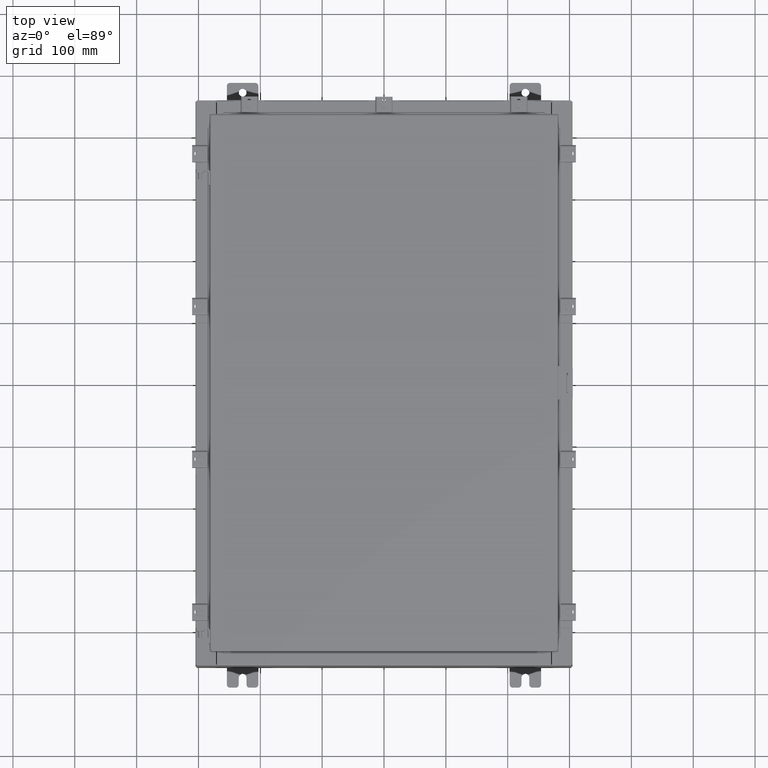
[diagram: clean part render]
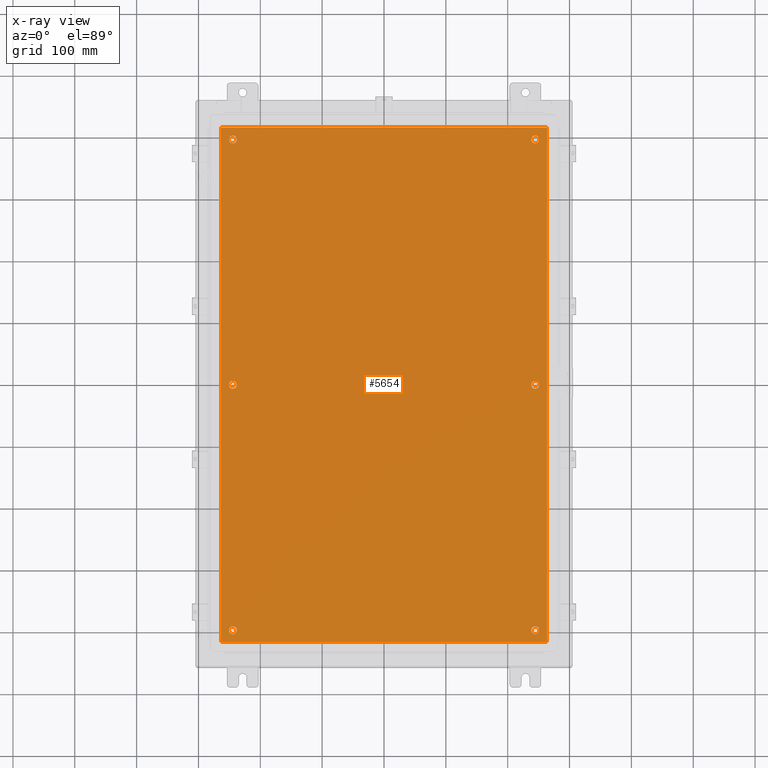
[diagram: x-ray — body ghosted, one internal face saturated and labeled with its STEP entity id]
A machine part, top view, then the same camera in x-ray: the body is ghosted and one INTERNAL B-rep face — a face not visible from any outside direction — is saturated and labeled: STEP entity #5654.
In plain terms, the highlighted planar face has unit normal (0, 0, -1).
Its self-contained STEP definition (entity closure, byte-faithful):
#704 = FACE_BOUND ( 'NONE', #13198, .T. ) ;
#902 = DIRECTION ( 'NONE',  ( -1.000000000000000000, 0.0000000000000000000, 0.0000000000000000000 ) ) ;
#1252 = AXIS2_PLACEMENT_3D ( 'NONE', #15045, #4259, #16879 ) ;
#1322 = CIRCLE ( 'NONE', #1252, 0.2499999999999998100 ) ;
#1327 = AXIS2_PLACEMENT_3D ( 'NONE', #8301, #20927, #10097 ) ;
#1507 = EDGE_CURVE ( 'NONE', #11406, #23224, #2760, .T. ) ;
#1659 = DIRECTION ( 'NONE',  ( -1.000000000000000000, 0.0000000000000000000, 0.0000000000000000000 ) ) ;
#1670 = EDGE_LOOP ( 'NONE', ( #9652, #3026 ) ) ;
#1897 = AXIS2_PLACEMENT_3D ( 'NONE', #18444, #7579, #20238 ) ;
#1991 = ORIENTED_EDGE ( 'NONE', *, *, #12398, .T. ) ;
#2017 = CARTESIAN_POINT ( 'NONE',  ( -9.625000000000007100, -15.62500000000000200, -0.1039999999999999800 ) ) ;
#2419 = VECTOR ( 'NONE', #10706, 39.37007874015748100 ) ;
#2760 = LINE ( 'NONE', #22980, #21298 ) ;
#2875 = AXIS2_PLACEMENT_3D ( 'NONE', #23168, #12344, #1659 ) ;
#2931 = EDGE_CURVE ( 'NONE', #20089, #19381, #4880, .T. ) ;
#3026 = ORIENTED_EDGE ( 'NONE', *, *, #8653, .T. ) ;
#3171 = CARTESIAN_POINT ( 'NONE',  ( -9.625000000000007100, 15.62500000000000200, -0.1039999999999999800 ) ) ;
#3280 = CIRCLE ( 'NONE', #4363, 0.2499999999999998100 ) ;
#3766 = DIRECTION ( 'NONE',  ( -1.000000000000000000, 0.0000000000000000000, 0.0000000000000000000 ) ) ;
#3779 = VECTOR ( 'NONE', #19208, 39.37007874015748100 ) ;
#3788 = LINE ( 'NONE', #5090, #22379 ) ;
#3994 = VERTEX_POINT ( 'NONE', #18817 ) ;
#4201 = ORIENTED_EDGE ( 'NONE', *, *, #16274, .T. ) ;
#4259 = DIRECTION ( 'NONE',  ( -0.0000000000000000000, -0.0000000000000000000, 1.000000000000000000 ) ) ;
#4350 = DIRECTION ( 'NONE',  ( 0.0000000000000000000, 1.000000000000000000, 0.0000000000000000000 ) ) ;
#4363 = AXIS2_PLACEMENT_3D ( 'NONE', #16070, #5232, #17894 ) ;
#4366 = ORIENTED_EDGE ( 'NONE', *, *, #18116, .T. ) ;
#4581 = EDGE_CURVE ( 'NONE', #19381, #11406, #3788, .T. ) ;
#4833 = ORIENTED_EDGE ( 'NONE', *, *, #22831, .F. ) ;
#4842 = FACE_OUTER_BOUND ( 'NONE', #16125, .T. ) ;
#4880 = LINE ( 'NONE', #19134, #3779 ) ;
#4926 = DIRECTION ( 'NONE',  ( -1.000000000000000000, 0.0000000000000000000, 0.0000000000000000000 ) ) ;
#5090 = CARTESIAN_POINT ( 'NONE',  ( 10.38300000000000100, -16.38299999999999600, -0.1040000000000009100 ) ) ;
#5091 = VERTEX_POINT ( 'NONE', #14673 ) ;
#5232 = DIRECTION ( 'NONE',  ( -0.0000000000000000000, -0.0000000000000000000, 1.000000000000000000 ) ) ;
#5654 = ADVANCED_FACE ( 'NONE', ( #10164, #15016, #19247, #14438, #9623, #704, #4842 ), #15385, .T. ) ;
#5820 = CIRCLE ( 'NONE', #21038, 0.2499999999999998100 ) ;
#6141 = CIRCLE ( 'NONE', #1897, 0.2500000000000008900 ) ;
#6300 = VERTEX_POINT ( 'NONE', #17323 ) ;
#6314 = CIRCLE ( 'NONE', #2875, 0.2499999999999998100 ) ;
#6813 = CARTESIAN_POINT ( 'NONE',  ( -9.625000000000005300, 2.628543122537473900E-016, -0.1039999999999999800 ) ) ;
#7065 = VERTEX_POINT ( 'NONE', #12711 ) ;
#7250 = AXIS2_PLACEMENT_3D ( 'NONE', #3171, #15737, #4926 ) ;
#7382 = CARTESIAN_POINT ( 'NONE',  ( -9.625000000000007100, 15.62500000000000200, -0.1039999999999999800 ) ) ;
#7571 = ORIENTED_EDGE ( 'NONE', *, *, #2931, .F. ) ;
#7579 = DIRECTION ( 'NONE',  ( -0.0000000000000000000, -0.0000000000000000000, 1.000000000000000000 ) ) ;
#7646 = ORIENTED_EDGE ( 'NONE', *, *, #12692, .T. ) ;
#8026 = DIRECTION ( 'NONE',  ( -0.0000000000000000000, -0.0000000000000000000, 1.000000000000000000 ) ) ;
#8301 = CARTESIAN_POINT ( 'NONE',  ( 9.625000000000007100, 15.62500000000000200, -0.1039999999999999800 ) ) ;
#8319 = CARTESIAN_POINT ( 'NONE',  ( 10.38300000000000100, 16.38300000000000300, -0.1040000000000009100 ) ) ;
#8482 = ORIENTED_EDGE ( 'NONE', *, *, #18038, .T. ) ;
#8532 = EDGE_CURVE ( 'NONE', #5091, #8771, #12023, .T. ) ;
#8548 = CIRCLE ( 'NONE', #17217, 0.2500000000000008900 ) ;
#8625 = DIRECTION ( 'NONE',  ( -1.000000000000000000, 0.0000000000000000000, 0.0000000000000000000 ) ) ;
#8653 = EDGE_CURVE ( 'NONE', #11561, #23178, #6141, .T. ) ;
#8771 = VERTEX_POINT ( 'NONE', #13946 ) ;
#8825 = CARTESIAN_POINT ( 'NONE',  ( -9.625000000000007100, -15.62500000000000200, -0.1039999999999999800 ) ) ;
#9035 = EDGE_CURVE ( 'NONE', #10967, #9694, #20259, .T. ) ;
#9196 = DIRECTION ( 'NONE',  ( -1.000000000000000000, 0.0000000000000000000, 0.0000000000000000000 ) ) ;
#9328 = CARTESIAN_POINT ( 'NONE',  ( 9.875000000000007100, -15.62500000000000200, -0.1039999999999999800 ) ) ;
#9623 = FACE_BOUND ( 'NONE', #11095, .T. ) ;
#9652 = ORIENTED_EDGE ( 'NONE', *, *, #13475, .T. ) ;
#9694 = VERTEX_POINT ( 'NONE', #17982 ) ;
#9843 = EDGE_LOOP ( 'NONE', ( #17826, #19119 ) ) ;
#9847 = VERTEX_POINT ( 'NONE', #9328 ) ;
#10097 = DIRECTION ( 'NONE',  ( -1.000000000000000000, 0.0000000000000000000, 0.0000000000000000000 ) ) ;
#10164 = FACE_BOUND ( 'NONE', #13013, .T. ) ;
#10191 = CARTESIAN_POINT ( 'NONE',  ( 10.38300000000000100, -16.38299999999999600, -0.1040000000000009100 ) ) ;
#10229 = CIRCLE ( 'NONE', #17483, 0.2500000000000008900 ) ;
#10319 = AXIS2_PLACEMENT_3D ( 'NONE', #17612, #13514, #13162 ) ;
#10626 = DIRECTION ( 'NONE',  ( -1.000000000000000000, 0.0000000000000000000, 0.0000000000000000000 ) ) ;
#10706 = DIRECTION ( 'NONE',  ( 0.0000000000000000000, -1.000000000000000000, 0.0000000000000000000 ) ) ;
#10967 = VERTEX_POINT ( 'NONE', #19660 ) ;
#11095 = EDGE_LOOP ( 'NONE', ( #8482, #4201 ) ) ;
#11406 = VERTEX_POINT ( 'NONE', #8319 ) ;
#11561 = VERTEX_POINT ( 'NONE', #19796 ) ;
#11581 = DIRECTION ( 'NONE',  ( -0.0000000000000000000, -0.0000000000000000000, 1.000000000000000000 ) ) ;
#11771 = EDGE_CURVE ( 'NONE', #8771, #5091, #10229, .T. ) ;
#12023 = CIRCLE ( 'NONE', #13116, 0.2500000000000008900 ) ;
#12344 = DIRECTION ( 'NONE',  ( -0.0000000000000000000, -0.0000000000000000000, 1.000000000000000000 ) ) ;
#12398 = EDGE_CURVE ( 'NONE', #6300, #7065, #6314, .T. ) ;
#12692 = EDGE_CURVE ( 'NONE', #7065, #6300, #1322, .T. ) ;
#12711 = CARTESIAN_POINT ( 'NONE',  ( 9.875000000000007100, 2.620299400612403500E-015, -0.1039999999999999800 ) ) ;
#13013 = EDGE_LOOP ( 'NONE', ( #7646, #1991 ) ) ;
#13049 = EDGE_CURVE ( 'NONE', #16105, #9847, #3280, .T. ) ;
#13116 = AXIS2_PLACEMENT_3D ( 'NONE', #2017, #14543, #3766 ) ;
#13162 = DIRECTION ( 'NONE',  ( -1.000000000000000000, 0.0000000000000000000, -0.0000000000000000000 ) ) ;
#13198 = EDGE_LOOP ( 'NONE', ( #22507, #4366 ) ) ;
#13436 = AXIS2_PLACEMENT_3D ( 'NONE', #7382, #20045, #9196 ) ;
#13457 = DIRECTION ( 'NONE',  ( -1.000000000000000000, -0.0000000000000000000, -0.0000000000000000000 ) ) ;
#13475 = EDGE_CURVE ( 'NONE', #23178, #11561, #8548, .T. ) ;
#13514 = DIRECTION ( 'NONE',  ( 0.0000000000000000000, 0.0000000000000000000, -1.000000000000000000 ) ) ;
#13701 = CARTESIAN_POINT ( 'NONE',  ( -10.38300000000000100, 16.38300000000000300, -0.1039999999999987600 ) ) ;
#13946 = CARTESIAN_POINT ( 'NONE',  ( -9.375000000000007100, -15.62500000000000200, -0.1039999999999999800 ) ) ;
#14225 = CARTESIAN_POINT ( 'NONE',  ( -10.38300000000000100, -16.38299999999999600, -0.1040000000000009100 ) ) ;
#14438 = FACE_BOUND ( 'NONE', #16330, .T. ) ;
#14543 = DIRECTION ( 'NONE',  ( -0.0000000000000000000, -0.0000000000000000000, 1.000000000000000000 ) ) ;
#14673 = CARTESIAN_POINT ( 'NONE',  ( -9.875000000000007100, -15.62500000000000200, -0.1039999999999999800 ) ) ;
#14906 = VERTEX_POINT ( 'NONE', #15263 ) ;
#15016 = FACE_BOUND ( 'NONE', #1670, .T. ) ;
#15045 = CARTESIAN_POINT ( 'NONE',  ( 9.625000000000007100, 2.620299400612403500E-015, -0.1039999999999999800 ) ) ;
#15263 = CARTESIAN_POINT ( 'NONE',  ( 9.375000000000007100, 15.62500000000000200, -0.1039999999999999800 ) ) ;
#15385 = PLANE ( 'NONE',  #10319 ) ;
#15737 = DIRECTION ( 'NONE',  ( -0.0000000000000000000, -0.0000000000000000000, 1.000000000000000000 ) ) ;
#16070 = CARTESIAN_POINT ( 'NONE',  ( 9.625000000000007100, -15.62500000000000200, -0.1039999999999999800 ) ) ;
#16105 = VERTEX_POINT ( 'NONE', #18561 ) ;
#16125 = EDGE_LOOP ( 'NONE', ( #7571, #4833, #17874, #21214 ) ) ;
#16274 = EDGE_CURVE ( 'NONE', #14906, #3994, #23117, .T. ) ;
#16330 = EDGE_LOOP ( 'NONE', ( #19746, #16703 ) ) ;
#16703 = ORIENTED_EDGE ( 'NONE', *, *, #13049, .T. ) ;
#16749 = LINE ( 'NONE', #21445, #2419 ) ;
#16879 = DIRECTION ( 'NONE',  ( -1.000000000000000000, 0.0000000000000000000, 0.0000000000000000000 ) ) ;
#17217 = AXIS2_PLACEMENT_3D ( 'NONE', #6813, #19461, #8625 ) ;
#17323 = CARTESIAN_POINT ( 'NONE',  ( 9.375000000000007100, 2.650915570591087300E-015, -0.1039999999999999800 ) ) ;
#17483 = AXIS2_PLACEMENT_3D ( 'NONE', #8825, #21452, #10626 ) ;
#17612 = CARTESIAN_POINT ( 'NONE',  ( 0.0000000000000000000, 0.0000000000000000000, -0.1039999999999999800 ) ) ;
#17826 = ORIENTED_EDGE ( 'NONE', *, *, #11771, .T. ) ;
#17874 = ORIENTED_EDGE ( 'NONE', *, *, #1507, .F. ) ;
#17894 = DIRECTION ( 'NONE',  ( -1.000000000000000000, 0.0000000000000000000, 0.0000000000000000000 ) ) ;
#17982 = CARTESIAN_POINT ( 'NONE',  ( -9.875000000000007100, 15.62500000000000200, -0.1039999999999999800 ) ) ;
#18038 = EDGE_CURVE ( 'NONE', #3994, #14906, #22184, .T. ) ;
#18116 = EDGE_CURVE ( 'NONE', #9694, #10967, #20512, .T. ) ;
#18444 = CARTESIAN_POINT ( 'NONE',  ( -9.625000000000005300, 2.628543122537473900E-016, -0.1039999999999999800 ) ) ;
#18561 = CARTESIAN_POINT ( 'NONE',  ( 9.375000000000007100, -15.62500000000000200, -0.1039999999999999800 ) ) ;
#18817 = CARTESIAN_POINT ( 'NONE',  ( 9.875000000000007100, 15.62500000000000200, -0.1039999999999999800 ) ) ;
#18866 = CARTESIAN_POINT ( 'NONE',  ( 9.625000000000007100, 15.62500000000000200, -0.1039999999999999800 ) ) ;
#19119 = ORIENTED_EDGE ( 'NONE', *, *, #8532, .T. ) ;
#19134 = CARTESIAN_POINT ( 'NONE',  ( -10.50000000000000200, -16.38299999999999600, -0.1040000000000009100 ) ) ;
#19208 = DIRECTION ( 'NONE',  ( 1.000000000000000000, -0.0000000000000000000, -0.0000000000000000000 ) ) ;
#19247 = FACE_BOUND ( 'NONE', #9843, .T. ) ;
#19381 = VERTEX_POINT ( 'NONE', #10191 ) ;
#19461 = DIRECTION ( 'NONE',  ( -0.0000000000000000000, -0.0000000000000000000, 1.000000000000000000 ) ) ;
#19660 = CARTESIAN_POINT ( 'NONE',  ( -9.375000000000007100, 15.62500000000000200, -0.1039999999999999800 ) ) ;
#19746 = ORIENTED_EDGE ( 'NONE', *, *, #20436, .T. ) ;
#19796 = CARTESIAN_POINT ( 'NONE',  ( -9.875000000000005300, 2.934704822324310800E-016, -0.1039999999999999800 ) ) ;
#20045 = DIRECTION ( 'NONE',  ( -0.0000000000000000000, -0.0000000000000000000, 1.000000000000000000 ) ) ;
#20089 = VERTEX_POINT ( 'NONE', #14225 ) ;
#20238 = DIRECTION ( 'NONE',  ( -1.000000000000000000, 0.0000000000000000000, 0.0000000000000000000 ) ) ;
#20259 = CIRCLE ( 'NONE', #13436, 0.2500000000000008900 ) ;
#20436 = EDGE_CURVE ( 'NONE', #9847, #16105, #5820, .T. ) ;
#20512 = CIRCLE ( 'NONE', #7250, 0.2500000000000008900 ) ;
#20663 = DIRECTION ( 'NONE',  ( -1.000000000000000000, 0.0000000000000000000, 0.0000000000000000000 ) ) ;
#20927 = DIRECTION ( 'NONE',  ( -0.0000000000000000000, -0.0000000000000000000, 1.000000000000000000 ) ) ;
#21038 = AXIS2_PLACEMENT_3D ( 'NONE', #22418, #11581, #902 ) ;
#21214 = ORIENTED_EDGE ( 'NONE', *, *, #4581, .F. ) ;
#21298 = VECTOR ( 'NONE', #13457, 39.37007874015748100 ) ;
#21445 = CARTESIAN_POINT ( 'NONE',  ( -10.38300000000000100, 16.38300000000000300, -0.1039999999999987600 ) ) ;
#21452 = DIRECTION ( 'NONE',  ( -0.0000000000000000000, -0.0000000000000000000, 1.000000000000000000 ) ) ;
#22184 = CIRCLE ( 'NONE', #1327, 0.2499999999999998100 ) ;
#22379 = VECTOR ( 'NONE', #4350, 39.37007874015748100 ) ;
#22418 = CARTESIAN_POINT ( 'NONE',  ( 9.625000000000007100, -15.62500000000000200, -0.1039999999999999800 ) ) ;
#22507 = ORIENTED_EDGE ( 'NONE', *, *, #9035, .T. ) ;
#22622 = CARTESIAN_POINT ( 'NONE',  ( -9.375000000000005300, 2.628543122537473900E-016, -0.1039999999999999800 ) ) ;
#22804 = AXIS2_PLACEMENT_3D ( 'NONE', #18866, #8026, #20663 ) ;
#22831 = EDGE_CURVE ( 'NONE', #23224, #20089, #16749, .T. ) ;
#22980 = CARTESIAN_POINT ( 'NONE',  ( 10.50000000000000400, 16.38299999999999900, -0.1040000000000009100 ) ) ;
#23117 = CIRCLE ( 'NONE', #22804, 0.2499999999999998100 ) ;
#23168 = CARTESIAN_POINT ( 'NONE',  ( 9.625000000000007100, 2.620299400612403500E-015, -0.1039999999999999800 ) ) ;
#23178 = VERTEX_POINT ( 'NONE', #22622 ) ;
#23224 = VERTEX_POINT ( 'NONE', #13701 ) ;